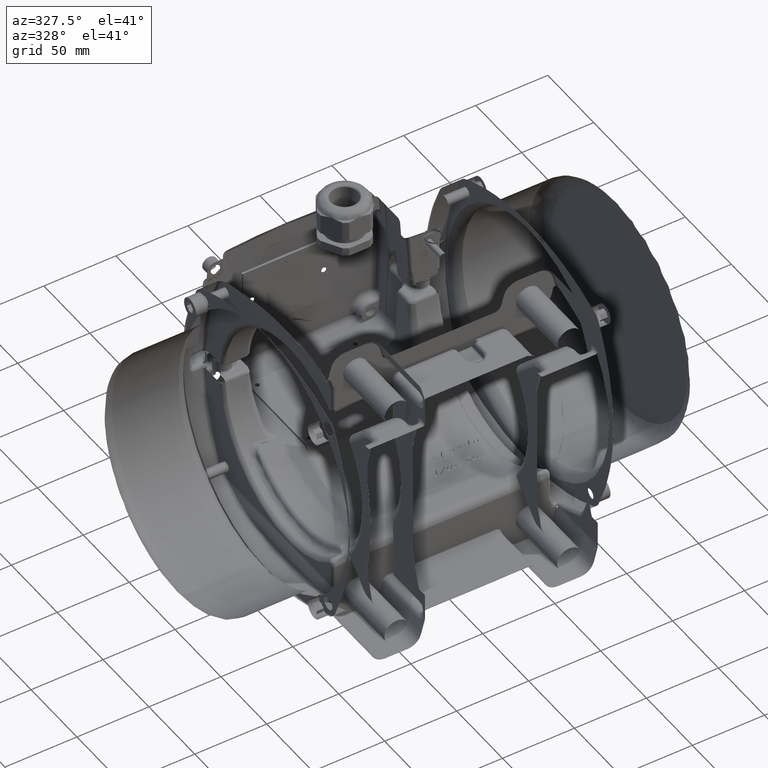
[diagram: clean part render]
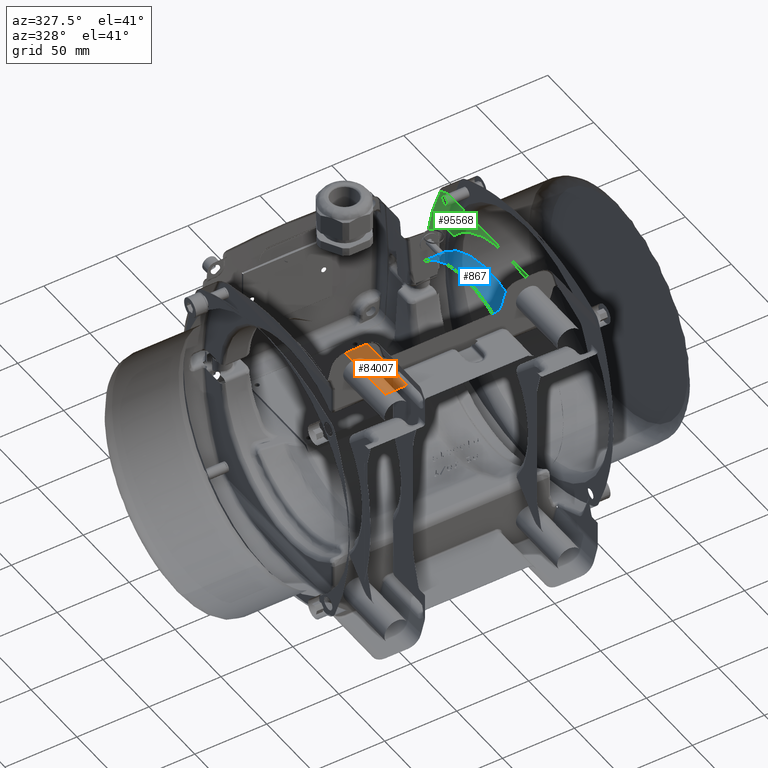
[diagram: same view with three faces highlighted in distinct colors, each labeled with its STEP entity id]
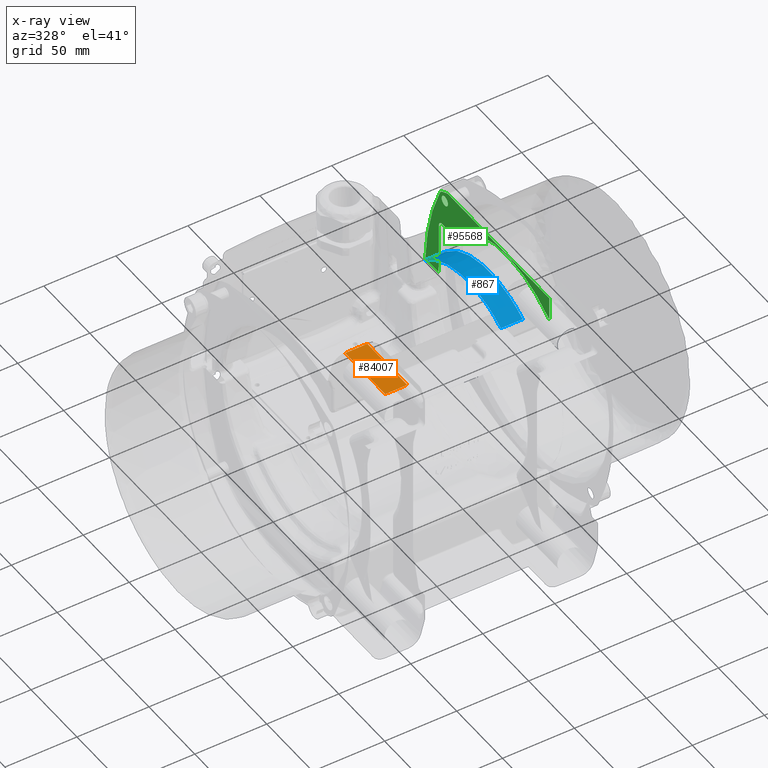
[diagram: x-ray of the same camera — body ghosted, the three highlighted faces saturated]
A machine part, auxiliary view with three faces highlighted in distinct colors.
The next image is the same camera in x-ray (body ghosted, the three faces saturated) — at least one of them is partly hidden behind the body in this view.
Their STEP definitions:

[orange] entity #84007 — the highlighted planar face has unit normal (-0, 0, -1).
#130 = VERTEX_POINT ( 'NONE', #28286 ) ;
#2100 = LINE ( 'NONE', #7037, #122182 ) ;
#4096 = CARTESIAN_POINT ( 'NONE',  ( -56.34717562445209900, -50.57102062944969800, 102.5000000000000000 ) ) ;
#5404 = ORIENTED_EDGE ( 'NONE', *, *, #90713, .T. ) ;
#7037 = CARTESIAN_POINT ( 'NONE',  ( -48.70955637178639800, -72.32102062944989000, 102.5000000000000000 ) ) ;
#8393 = CARTESIAN_POINT ( 'NONE',  ( -48.70955637178639800, -50.57102062944969800, 102.5000000000000000 ) ) ;
#9784 = EDGE_LOOP ( 'NONE', ( #60807, #49831, #71669, #5404 ) ) ;
#14916 = VERTEX_POINT ( 'NONE', #81315 ) ;
#27220 = EDGE_CURVE ( 'NONE', #70589, #130, #114839, .T. ) ;
#28286 = CARTESIAN_POINT ( 'NONE',  ( -63.98479487711789200, -50.57102062944960600, 102.5000000000000000 ) ) ;
#28890 = VECTOR ( 'NONE', #55240, 1000.000000000000000 ) ;
#38177 = DIRECTION ( 'NONE',  ( -3.906483347465955200E-032, 3.189992003522729900E-016, -1.000000000000000000 ) ) ;
#41738 = AXIS2_PLACEMENT_3D ( 'NONE', #100217, #38177, #67238 ) ;
#47641 = CARTESIAN_POINT ( 'NONE',  ( -63.98686791129638600, -94.07102062945000400, 102.5000000000000000 ) ) ;
#49831 = ORIENTED_EDGE ( 'NONE', *, *, #27220, .T. ) ;
#55240 = DIRECTION ( 'NONE',  ( 0.0000000000000000000, 1.000000000000000000, 3.189992003522729900E-016 ) ) ;
#60807 = ORIENTED_EDGE ( 'NONE', *, *, #117170, .T. ) ;
#64337 = CARTESIAN_POINT ( 'NONE',  ( -63.98479487711789200, -94.07309366362851200, 102.5000000000000000 ) ) ;
#67238 = DIRECTION ( 'NONE',  ( 0.0000000000000000000, 1.000000000000000000, 3.189992003522729900E-016 ) ) ;
#67500 = VERTEX_POINT ( 'NONE', #8393 ) ;
#70589 = VERTEX_POINT ( 'NONE', #130728 ) ;
#71669 = ORIENTED_EDGE ( 'NONE', *, *, #76787, .F. ) ;
#76787 = EDGE_CURVE ( 'NONE', #67500, #130, #98787, .T. ) ;
#78027 = PLANE ( 'NONE',  #41738 ) ;
#81315 = CARTESIAN_POINT ( 'NONE',  ( -48.70955637178639800, -94.07102062945000400, 102.5000000000000000 ) ) ;
#84007 = ADVANCED_FACE ( 'NONE', ( #126086 ), #78027, .T. ) ;
#90713 = EDGE_CURVE ( 'NONE', #67500, #14916, #2100, .T. ) ;
#98787 = LINE ( 'NONE', #4096, #110272 ) ;
#100217 = CARTESIAN_POINT ( 'NONE',  ( -63.98686791129638600, -94.07309366362851200, 102.5000000000000000 ) ) ;
#104534 = VECTOR ( 'NONE', #130513, 1000.000000000000000 ) ;
#110272 = VECTOR ( 'NONE', #118333, 1000.000000000000000 ) ;
#112729 = LINE ( 'NONE', #47641, #104534 ) ;
#114839 = LINE ( 'NONE', #64337, #28890 ) ;
#117170 = EDGE_CURVE ( 'NONE', #14916, #70589, #112729, .T. ) ;
#118333 = DIRECTION ( 'NONE',  ( -1.000000000000000000, 8.176637649666550800E-015, 5.451091766444370100E-015 ) ) ;
#122182 = VECTOR ( 'NONE', #123513, 1000.000000000000000 ) ;
#123513 = DIRECTION ( 'NONE',  ( 0.0000000000000000000, -1.000000000000000000, 0.0000000000000000000 ) ) ;
#126086 = FACE_OUTER_BOUND ( 'NONE', #9784, .T. ) ;
#130513 = DIRECTION ( 'NONE',  ( -1.000000000000000000, -1.246165064031110000E-047, 3.906483347465955200E-032 ) ) ;
#130728 = CARTESIAN_POINT ( 'NONE',  ( -63.98479487711789200, -94.07102062945000400, 102.5000000000000000 ) ) ;

[blue] entity #867 — the highlighted face is a freeform B-spline surface patch.
#767 = CARTESIAN_POINT ( 'NONE',  ( 57.55433245987499900, 39.13442289023454600, 55.24874687135879700 ) ) ;
#867 = ADVANCED_FACE ( 'NONE', ( #102639 ), #21177, .T. ) ;
#1202 = CARTESIAN_POINT ( 'NONE',  ( 67.67791767581158500, 7.013516903103109700, 67.84898644533369300 ) ) ;
#2150 = CARTESIAN_POINT ( 'NONE',  ( 67.67788719001414700, 29.19921828195945000, 61.25796130616419800 ) ) ;
#2991 = CARTESIAN_POINT ( 'NONE',  ( 62.61612506784329200, -34.05275636724540100, 59.59066894226089800 ) ) ;
#3439 = CARTESIAN_POINT ( 'NONE',  ( 57.55433245987499900, -16.09974065508929900, 66.65555311849318800 ) ) ;
#4410 = CARTESIAN_POINT ( 'NONE',  ( 53.66691907417442300, 46.71252753688620600, 48.38128764920720200 ) ) ;
#4735 = B_SPLINE_CURVE_WITH_KNOTS ( 'NONE', 3,
 ( #36442, #77641, #5555, #78078, #15990, #88502, #26450, #36872, #47340, #7834, #90778, #28751, #132923, #39177, #80812, #102572, #70892, #133828 ),
 .UNSPECIFIED., .F., .F.,
 ( 4, 2, 2, 1, 2, 2, 1, 2, 2, 4 ),
 ( 0.0000000000000000000, 0.1249999999999973100, 0.2499999999999946200, 0.3749999999999919000, 0.4374999999999834600, 0.4999999999999750200, 0.6249999999999802400, 0.6874999999999886800, 0.7499999999999970000, 1.000000000000000000 ),
 .UNSPECIFIED. ) ;
#5301 = CARTESIAN_POINT ( 'NONE',  ( 59.53491839174542800, 47.12263091362051900, 47.97308252074002200 ) ) ;
#5555 = CARTESIAN_POINT ( 'NONE',  ( 66.70237254294383400, 47.67212793170151700, 47.41419169200997200 ) ) ;
#6502 = CARTESIAN_POINT ( 'NONE',  ( 67.67788719001470100, -37.31085291087759300, 57.53846153844000400 ) ) ;
#7834 = CARTESIAN_POINT ( 'NONE',  ( 67.27615505549665900, 47.46462071391302100, 47.62658768975171600 ) ) ;
#9826 = CARTESIAN_POINT ( 'NONE',  ( 62.61612506784329200, 47.67562579118710200, 47.41059441455450200 ) ) ;
#10274 = CARTESIAN_POINT ( 'NONE',  ( 67.67791767581150000, 39.13442289023454600, 55.24874687135879700 ) ) ;
#10723 = CARTESIAN_POINT ( 'NONE',  ( 52.49253985190670600, 48.32029130255410400, 46.74776193733619300 ) ) ;
#10815 = CARTESIAN_POINT ( 'NONE',  ( 52.49257033770349800, 6.276944672491319800, 67.92223308036929600 ) ) ;
#11173 = VERTEX_POINT ( 'NONE', #52621 ) ;
#11710 = CARTESIAN_POINT ( 'NONE',  ( 52.49257033770349800, -34.10328290216858700, 59.55870606489526200 ) ) ;
#12063 = CARTESIAN_POINT ( 'NONE',  ( 62.61612506784329200, -16.09974065508929900, 66.65555311849318800 ) ) ;
#13019 = CARTESIAN_POINT ( 'NONE',  ( 67.67788719001404700, 18.38714119134290200, 65.49994822008230200 ) ) ;
#14366 = CARTESIAN_POINT ( 'NONE',  ( 67.67788719001404700, -16.09974065508929900, 66.65555311849323100 ) ) ;
#15990 = CARTESIAN_POINT ( 'NONE',  ( 66.89956368819429100, 47.64410347913611300, 47.44299145790912300 ) ) ;
#17051 = CARTESIAN_POINT ( 'NONE',  ( 67.67788719004759900, 46.35183522143289300, 48.73465537844609200 ) ) ;
#20295 = CARTESIAN_POINT ( 'NONE',  ( 57.55433245987499900, 48.32029130255410400, 46.74776193733619300 ) ) ;
#21177 = B_SPLINE_SURFACE_WITH_KNOTS ( 'NONE', 3, 3, ( 
 ( #113220, #73758, #20295, #10723 ),
 ( #41176, #124516, #82349, #124961 ),
 ( #31194, #103675, #51181, #104125 ),
 ( #124076, #9826, #93679, #31653 ),
 ( #42071, #52525, #62914, #72426 ),
 ( #10274, #123626, #767, #61578 ),
 ( #104578, #114995, #21641, #62027 ),
 ( #32079, #134462, #92787, #63359 ),
 ( #1202, #94567, #82792, #84126 ),
 ( #22084, #41625, #32513, #93236 ),
 ( #65166, #12063, #3439, #33410 ),
 ( #84572, #115896, #34304, #75539 ),
 ( #53415, #2991, #53840, #43863 ),
 ( #126303, #105912, #105464, #75095 ) ),
 .UNSPECIFIED., .F., .F., .F.,
 ( 4, 3, 1, 1, 1, 1, 1, 1, 1, 4 ),
 ( 4, 4 ),
 ( -0.9246299337579939600, 0.0000000000000000000, 11.55787417197492000, 23.11574834394985000, 34.67362251592474800, 46.23149668789970000, 57.78937085987460200, 69.34724503184949600, 80.90511920382439800, 92.46299337579940000 ),
 ( 0.0000000000000000000, 15.18537782390475000 ),
 .UNSPECIFIED. ) ;
#21641 = CARTESIAN_POINT ( 'NONE',  ( 57.55433245987499900, 29.19921828195945000, 61.25796130616419800 ) ) ;
#22072 = EDGE_CURVE ( 'NONE', #93179, #119955, #73367, .T. ) ;
#22084 = CARTESIAN_POINT ( 'NONE',  ( 67.67791767581158500, -4.593627799161609500, 68.23821888799210500 ) ) ;
#22615 = CARTESIAN_POINT ( 'NONE',  ( 52.49257033770349800, -27.33513376306713000, 63.06872584832341700 ) ) ;
#23040 = CARTESIAN_POINT ( 'NONE',  ( 67.67788719001414700, -4.593627799161609500, 68.23821888799210500 ) ) ;
#26450 = CARTESIAN_POINT ( 'NONE',  ( 67.11326647399604900, 47.56872844206932900, 47.52029045271839200 ) ) ;
#27349 = EDGE_CURVE ( 'NONE', #11173, #93179, #88205, .T. ) ;
#28751 = CARTESIAN_POINT ( 'NONE',  ( 67.41249329835034100, 47.34380567797379800, 47.74946271205453700 ) ) ;
#31194 = CARTESIAN_POINT ( 'NONE',  ( 67.67791767581150000, 47.89051429497610000, 47.18965025548170200 ) ) ;
#31653 = CARTESIAN_POINT ( 'NONE',  ( 52.49253985190670600, 47.67562579118710200, 47.41059441455450200 ) ) ;
#31747 = CARTESIAN_POINT ( 'NONE',  ( 52.49257033770349800, -5.147301417486420200, 68.19694806452470500 ) ) ;
#32043 = CARTESIAN_POINT ( 'NONE',  ( 66.56757403725239900, 47.66775028355639400, 47.41869050957770100 ) ) ;
#32079 = CARTESIAN_POINT ( 'NONE',  ( 67.67791767581150000, 18.38714119134290200, 65.49994822008230200 ) ) ;
#32513 = CARTESIAN_POINT ( 'NONE',  ( 57.55433245987499900, -4.593627799161609500, 68.23821888799210500 ) ) ;
#33410 = CARTESIAN_POINT ( 'NONE',  ( 52.49253985190679800, -16.09974065508929900, 66.65555311849318800 ) ) ;
#33467 = CARTESIAN_POINT ( 'NONE',  ( 67.67788719001404700, -27.16812199337222500, 63.14930684774776600 ) ) ;
#34304 = CARTESIAN_POINT ( 'NONE',  ( 57.55433245987499900, -27.16878377874330000, 63.14909720711300900 ) ) ;
#34816 = CARTESIAN_POINT ( 'NONE',  ( 67.67788719001404700, 44.03625606798716100, 50.98748760953033400 ) ) ;
#36175 = CARTESIAN_POINT ( 'NONE',  ( 56.01497638652242000, 46.87095288777639700, 48.22452461169599800 ) ) ;
#36442 = CARTESIAN_POINT ( 'NONE',  ( 66.56757403725239900, 47.66775028355639400, 47.41869050957770100 ) ) ;
#36872 = CARTESIAN_POINT ( 'NONE',  ( 67.19554089711165500, 47.51988726917881000, 47.57020153470576000 ) ) ;
#37040 = CARTESIAN_POINT ( 'NONE',  ( 67.66621828786048800, 46.68526936868418900, 48.40847537119038400 ) ) ;
#39177 = CARTESIAN_POINT ( 'NONE',  ( 67.50153298061115900, 47.22280491194548100, 47.87176455525057900 ) ) ;
#41176 = CARTESIAN_POINT ( 'NONE',  ( 67.67791767581150000, 48.10540279876509800, 46.96870609640900100 ) ) ;
#41625 = CARTESIAN_POINT ( 'NONE',  ( 62.61612506784329200, -4.593627799161609500, 68.23821888799210500 ) ) ;
#42071 = CARTESIAN_POINT ( 'NONE',  ( 67.67791767581150000, 44.98951949382459500, 50.17239640296359900 ) ) ;
#43863 = CARTESIAN_POINT ( 'NONE',  ( 52.49253985190679800, -34.05275636724545100, 59.59066894226089800 ) ) ;
#45491 = EDGE_CURVE ( 'NONE', #128214, #131410, #112948, .T. ) ;
#46059 = CARTESIAN_POINT ( 'NONE',  ( 52.49257033770359700, 46.63560224936649900, 48.45692983629889700 ) ) ;
#47340 = CARTESIAN_POINT ( 'NONE',  ( 67.24889195170382500, 47.48465258060495100, 47.60616441049302900 ) ) ;
#47501 = CARTESIAN_POINT ( 'NONE',  ( 67.67792342249002500, 46.52066468883128900, 48.57033357450014700 ) ) ;
#49801 = LINE ( 'NONE', #98300, #132428 ) ;
#51181 = CARTESIAN_POINT ( 'NONE',  ( 57.55433245987499900, 47.89051429497610000, 47.18965025548170200 ) ) ;
#52525 = CARTESIAN_POINT ( 'NONE',  ( 62.61612506784329200, 44.98951949382459500, 50.17239640296359900 ) ) ;
#52621 = CARTESIAN_POINT ( 'NONE',  ( 67.64277178613251400, 46.84572501848089800, 48.24917337038490200 ) ) ;
#53067 = CARTESIAN_POINT ( 'NONE',  ( 52.49257033770349800, 43.93431222169061800, 51.11643447996239300 ) ) ;
#53415 = CARTESIAN_POINT ( 'NONE',  ( 67.67791767581158500, -34.05275636724540100, 59.59066894226089800 ) ) ;
#53790 = EDGE_CURVE ( 'NONE', #131410, #119955, #49801, .T. ) ;
#53840 = CARTESIAN_POINT ( 'NONE',  ( 57.55433245987499900, -34.05275636724545100, 59.59066894226089800 ) ) ;
#54103 = CARTESIAN_POINT ( 'NONE',  ( 52.49257033770340500, -37.31085291085574300, 57.53846153840709800 ) ) ;
#54805 = ORIENTED_EDGE ( 'NONE', *, *, #27349, .T. ) ;
#58235 = VERTEX_POINT ( 'NONE', #32043 ) ;
#58846 = EDGE_LOOP ( 'NONE', ( #103855, #54805, #77144, #109792, #67150, #82174 ) ) ;
#61578 = CARTESIAN_POINT ( 'NONE',  ( 52.49253985190670600, 39.13442289023454600, 55.24874687135879700 ) ) ;
#62027 = CARTESIAN_POINT ( 'NONE',  ( 52.49253985190679800, 29.19921828195945000, 61.25796130616419800 ) ) ;
#62914 = CARTESIAN_POINT ( 'NONE',  ( 57.55433245987499900, 44.98951949382459500, 50.17239640296359900 ) ) ;
#63359 = CARTESIAN_POINT ( 'NONE',  ( 52.49253985190679800, 18.38714119134290200, 65.49994822008230200 ) ) ;
#64812 = CARTESIAN_POINT ( 'NONE',  ( 52.49257033770349800, 17.49563099644979800, 65.74738958909969700 ) ) ;
#65166 = CARTESIAN_POINT ( 'NONE',  ( 67.67791767581150000, -16.09974065508929900, 66.65555311849318800 ) ) ;
#66653 = DIRECTION ( 'NONE',  ( 1.000000000000000000, 1.341397804535467900E-015, -1.341397804535467900E-015 ) ) ;
#67150 = ORIENTED_EDGE ( 'NONE', *, *, #45491, .F. ) ;
#70892 = CARTESIAN_POINT ( 'NONE',  ( 67.62651026702617700, 46.95995595154808900, 48.13571485629917400 ) ) ;
#72426 = CARTESIAN_POINT ( 'NONE',  ( 52.49253985190670600, 44.98951949382459500, 50.17239640296359900 ) ) ;
#72969 = CARTESIAN_POINT ( 'NONE',  ( 52.49257033770349800, 38.07340396705939900, 55.99269507552013200 ) ) ;
#73367 = B_SPLINE_CURVE_WITH_KNOTS ( 'NONE', 3,
 ( #95984, #34816, #76470, #2150, #13019, #117303, #23040, #14366, #33467, #85537, #106414 ),
 .UNSPECIFIED., .F., .F.,
 ( 4, 1, 1, 1, 1, 1, 1, 1, 4 ),
 ( 0.0000000000000000000, 0.1069233206025451300, 0.2345089725031885600, 0.3620946244038317200, 0.4896802763044754100, 0.6172659282051185000, 0.7448515801057614700, 0.8724372320064046600, 1.000000000000000000 ),
 .UNSPECIFIED. ) ;
#73758 = CARTESIAN_POINT ( 'NONE',  ( 62.61612506784329200, 48.32029130255410400, 46.74776193733619300 ) ) ;
#75095 = CARTESIAN_POINT ( 'NONE',  ( 52.49253985190679800, -37.31260699989390200, 57.53735671156309900 ) ) ;
#75539 = CARTESIAN_POINT ( 'NONE',  ( 52.49253985190679800, -27.16878377874330000, 63.14909720711300900 ) ) ;
#76470 = CARTESIAN_POINT ( 'NONE',  ( 67.67788719001404700, 38.59809171173484500, 55.57314170636724500 ) ) ;
#76948 = CARTESIAN_POINT ( 'NONE',  ( 52.49257033770359700, 46.63560224936649900, 48.45692983629889700 ) ) ;
#77144 = ORIENTED_EDGE ( 'NONE', *, *, #22072, .T. ) ;
#77641 = CARTESIAN_POINT ( 'NONE',  ( 66.63553237046649300, 47.67305120293254800, 47.41324202369704500 ) ) ;
#78078 = CARTESIAN_POINT ( 'NONE',  ( 66.83381656642509900, 47.65783069686519700, 47.42888519522773500 ) ) ;
#79744 = EDGE_CURVE ( 'NONE', #58235, #11173, #4735, .T. ) ;
#80812 = CARTESIAN_POINT ( 'NONE',  ( 67.51813677261698400, 47.19607622388088000, 47.89871252279441200 ) ) ;
#82174 = ORIENTED_EDGE ( 'NONE', *, *, #93695, .F. ) ;
#82349 = CARTESIAN_POINT ( 'NONE',  ( 57.55433245987499900, 48.10540279876509800, 46.96870609640900100 ) ) ;
#82792 = CARTESIAN_POINT ( 'NONE',  ( 57.55433245987499900, 7.013516903103109700, 67.84898644533369300 ) ) ;
#84126 = CARTESIAN_POINT ( 'NONE',  ( 52.49253985190679800, 7.013516903103109700, 67.84898644533369300 ) ) ;
#84572 = CARTESIAN_POINT ( 'NONE',  ( 67.67791767581150000, -27.16878377874330000, 63.14909720711300900 ) ) ;
#85122 = CARTESIAN_POINT ( 'NONE',  ( 52.49257033770349800, 28.19540761693054900, 61.73232710760239400 ) ) ;
#85537 = CARTESIAN_POINT ( 'NONE',  ( 67.67788719001414700, -34.05152164613981100, 59.59130717616698500 ) ) ;
#88205 = B_SPLINE_CURVE_WITH_KNOTS ( 'NONE', 3,
 ( #130814, #37040, #47501, #17051 ),
 .UNSPECIFIED., .F., .F.,
 ( 4, 4 ),
 ( 0.0000000000000000000, 1.000000000000000000 ),
 .UNSPECIFIED. ) ;
#88502 = CARTESIAN_POINT ( 'NONE',  ( 67.02424852719806800, 47.60557797550416800, 47.48251747173379300 ) ) ;
#90778 = CARTESIAN_POINT ( 'NONE',  ( 67.34767538421226600, 47.40696581360453600, 47.68529313292492600 ) ) ;
#92787 = CARTESIAN_POINT ( 'NONE',  ( 57.55433245987499900, 18.38714119134290200, 65.49994822008230200 ) ) ;
#93179 = VERTEX_POINT ( 'NONE', #120589 ) ;
#93236 = CARTESIAN_POINT ( 'NONE',  ( 52.49253985190679800, -4.593627799161609500, 68.23821888799210500 ) ) ;
#93679 = CARTESIAN_POINT ( 'NONE',  ( 57.55433245987499900, 47.67562579118710200, 47.41059441455450200 ) ) ;
#93695 = EDGE_CURVE ( 'NONE', #58235, #128214, #105133, .T. ) ;
#93773 = CARTESIAN_POINT ( 'NONE',  ( 52.49257033770359700, 46.63560224936649900, 48.45692983629889700 ) ) ;
#94567 = CARTESIAN_POINT ( 'NONE',  ( 62.61612506784329200, 7.013516903103109700, 67.84898644533369300 ) ) ;
#95984 = CARTESIAN_POINT ( 'NONE',  ( 67.67788719004759900, 46.35183522143289300, 48.73465537844609200 ) ) ;
#98300 = CARTESIAN_POINT ( 'NONE',  ( 60.25189484283440300, -37.31085291089119200, 57.53846153846149700 ) ) ;
#102572 = CARTESIAN_POINT ( 'NONE',  ( 67.58973872608814300, 47.06818041020527200, 48.02744348753106600 ) ) ;
#102639 = FACE_OUTER_BOUND ( 'NONE', #58846, .T. ) ;
#103675 = CARTESIAN_POINT ( 'NONE',  ( 62.61612506784329200, 47.89051429497610000, 47.18965025548170200 ) ) ;
#103855 = ORIENTED_EDGE ( 'NONE', *, *, #79744, .T. ) ;
#104125 = CARTESIAN_POINT ( 'NONE',  ( 52.49253985190670600, 47.89051429497610000, 47.18965025548170200 ) ) ;
#104222 = CARTESIAN_POINT ( 'NONE',  ( 52.49257033770349800, -16.45819466071820300, 66.56304460999389500 ) ) ;
#104578 = CARTESIAN_POINT ( 'NONE',  ( 67.67791767581158500, 29.19921828195945000, 61.25796130616419800 ) ) ;
#104670 = CARTESIAN_POINT ( 'NONE',  ( 52.49257033770340500, -37.31085291085574300, 57.53846153840709800 ) ) ;
#105133 = B_SPLINE_CURVE_WITH_KNOTS ( 'NONE', 3,
 ( #107335, #117776, #107791, #5301, #36175, #4410, #76948 ),
 .UNSPECIFIED., .F., .F.,
 ( 4, 1, 1, 1, 4 ),
 ( 0.0000000000000000000, 0.2500355225278319000, 0.4999880712548088700, 0.7499984640031929200, 1.000000000000000000 ),
 .UNSPECIFIED. ) ;
#105464 = CARTESIAN_POINT ( 'NONE',  ( 57.55433245987499900, -37.31260699989390200, 57.53735671156309900 ) ) ;
#105912 = CARTESIAN_POINT ( 'NONE',  ( 62.61612506784329200, -37.31260699989385200, 57.53735671156309900 ) ) ;
#106414 = CARTESIAN_POINT ( 'NONE',  ( 67.67788719001470100, -37.31085291087759300, 57.53846153844000400 ) ) ;
#107335 = CARTESIAN_POINT ( 'NONE',  ( 66.56757403725239900, 47.66775028355639400, 47.41869050957770100 ) ) ;
#107791 = CARTESIAN_POINT ( 'NONE',  ( 63.05322174580808800, 47.38777486164352100, 47.70531816923341500 ) ) ;
#109792 = ORIENTED_EDGE ( 'NONE', *, *, #53790, .F. ) ;
#112948 = B_SPLINE_CURVE_WITH_KNOTS ( 'NONE', 3,
 ( #93773, #53067, #72969, #85122, #64812, #10815, #31747, #104222, #22615, #11710, #104670 ),
 .UNSPECIFIED., .F., .F.,
 ( 4, 1, 1, 1, 1, 1, 1, 1, 4 ),
 ( 0.0000000000000000000, 0.1249828935691865600, 0.2499886244230417300, 0.3749943552768974000, 0.5000000861307524200, 0.6250058169846086600, 0.7500115478384635800, 0.8750172786923197100, 1.000000000000000000 ),
 .UNSPECIFIED. ) ;
#113220 = CARTESIAN_POINT ( 'NONE',  ( 67.67791767581150000, 48.32029130255410400, 46.74776193733619300 ) ) ;
#114995 = CARTESIAN_POINT ( 'NONE',  ( 62.61612506784329200, 29.19921828195945000, 61.25796130616419800 ) ) ;
#115896 = CARTESIAN_POINT ( 'NONE',  ( 62.61612506784329200, -27.16878377874330000, 63.14909720711300900 ) ) ;
#117303 = CARTESIAN_POINT ( 'NONE',  ( 67.67788719001414700, 7.013516903103109700, 67.84898644533369300 ) ) ;
#117776 = CARTESIAN_POINT ( 'NONE',  ( 65.39617682465653600, 47.57296705764581900, 47.51605549136921500 ) ) ;
#119955 = VERTEX_POINT ( 'NONE', #6502 ) ;
#120589 = CARTESIAN_POINT ( 'NONE',  ( 67.67788719004759900, 46.35183522143289300, 48.73465537844609200 ) ) ;
#123626 = CARTESIAN_POINT ( 'NONE',  ( 62.61612506784320000, 39.13442289023454600, 55.24874687135879700 ) ) ;
#124076 = CARTESIAN_POINT ( 'NONE',  ( 67.67791767581150000, 47.67562579118710200, 47.41059441455450200 ) ) ;
#124516 = CARTESIAN_POINT ( 'NONE',  ( 62.61612506784329200, 48.10540279876509800, 46.96870609640900100 ) ) ;
#124961 = CARTESIAN_POINT ( 'NONE',  ( 52.49253985190670600, 48.10540279876509800, 46.96870609640900100 ) ) ;
#126303 = CARTESIAN_POINT ( 'NONE',  ( 67.67791767581158500, -37.31260699989385200, 57.53735671156309900 ) ) ;
#128214 = VERTEX_POINT ( 'NONE', #46059 ) ;
#130814 = CARTESIAN_POINT ( 'NONE',  ( 67.64277178613251400, 46.84572501848089800, 48.24917337038490200 ) ) ;
#131410 = VERTEX_POINT ( 'NONE', #54103 ) ;
#132428 = VECTOR ( 'NONE', #66653, 1000.000000000000000 ) ;
#132923 = CARTESIAN_POINT ( 'NONE',  ( 67.46725759062232400, 47.27232041740469300, 47.82176450060188000 ) ) ;
#133828 = CARTESIAN_POINT ( 'NONE',  ( 67.64277178613251400, 46.84572501848089800, 48.24917337038490200 ) ) ;
#134462 = CARTESIAN_POINT ( 'NONE',  ( 62.61612506784329200, 18.38714119134290200, 65.49994822008230200 ) ) ;

[green] entity #95568 — the highlighted planar face has unit normal (1, 0, 0).
#17 = CARTESIAN_POINT ( 'NONE',  ( 79.65282441890498400, 70.93915435961365300, 47.23703113984584700 ) ) ;
#576 = CARTESIAN_POINT ( 'NONE',  ( 79.65282437554789400, 65.13249548036309000, 64.32942753672590200 ) ) ;
#1096 = CARTESIAN_POINT ( 'NONE',  ( 79.65282437554785100, -36.98704858074682300, 65.88471230963067200 ) ) ;
#1583 = DIRECTION ( 'NONE',  ( 1.000000000000000000, 3.275570791092070000E-016, 0.0000000000000000000 ) ) ;
#1884 = CARTESIAN_POINT ( 'NONE',  ( 79.65282437554779400, 63.25840027387703700, 66.20351655203971600 ) ) ;
#1928 = VERTEX_POINT ( 'NONE', #15007 ) ;
#1982 = CARTESIAN_POINT ( 'NONE',  ( 79.65282437554780900, 32.45319126563297400, 67.13342163426280300 ) ) ;
#2637 = VERTEX_POINT ( 'NONE', #88250 ) ;
#3856 = CARTESIAN_POINT ( 'NONE',  ( 79.65282437554783700, 68.90594733741890800, 69.97731290360589200 ) ) ;
#4413 = B_SPLINE_CURVE_WITH_KNOTS ( 'NONE', 3,
 ( #105265, #83505, #576, #126109, #1884, #83945, #11418, #64071, #83057, #64516, #125668 ),
 .UNSPECIFIED., .F., .F.,
 ( 4, 1, 1, 1, 1, 1, 1, 1, 4 ),
 ( 0.01069054821312328600, 0.01202796278886692300, 0.01336537736461055800, 0.01470279194035418700, 0.01604020651609782500, 0.01737762109184146100, 0.01871503566758509600, 0.02005245024332872500, 0.02138986481907236400 ),
 .UNSPECIFIED. ) ;
#4476 = VERTEX_POINT ( 'NONE', #103104 ) ;
#4513 = ORIENTED_EDGE ( 'NONE', *, *, #37144, .T. ) ;
#4551 = CARTESIAN_POINT ( 'NONE',  ( 79.65282437554779400, 87.75626808933429900, 75.61916848035500000 ) ) ;
#4916 = ORIENTED_EDGE ( 'NONE', *, *, #114881, .T. ) ;
#4983 = DIRECTION ( 'NONE',  ( 3.275570791092070000E-016, -1.000000000000000000, -0.0000000000000000000 ) ) ;
#7125 = ORIENTED_EDGE ( 'NONE', *, *, #9838, .T. ) ;
#8037 = EDGE_CURVE ( 'NONE', #48155, #114931, #91063, .T. ) ;
#8188 = CARTESIAN_POINT ( 'NONE',  ( 79.65282437645443300, 71.86472381129722500, 46.49151538937353200 ) ) ;
#8639 = CARTESIAN_POINT ( 'NONE',  ( 79.65282439323019000, 70.31663303873389700, 47.53090090805063300 ) ) ;
#9098 = CARTESIAN_POINT ( 'NONE',  ( 79.65282444966582900, 69.84441591813265400, 47.67614901403398900 ) ) ;
#9230 = ORIENTED_EDGE ( 'NONE', *, *, #32585, .T. ) ;
#9541 = CARTESIAN_POINT ( 'NONE',  ( 79.65282440356061500, 70.25803666498993000, 47.55197346040764500 ) ) ;
#9838 = EDGE_CURVE ( 'NONE', #4476, #70566, #45642, .T. ) ;
#9989 = CARTESIAN_POINT ( 'NONE',  ( 79.65282440168798000, 70.26744950573917900, 47.54861825097151500 ) ) ;
#10427 = CARTESIAN_POINT ( 'NONE',  ( 79.65282437555170200, 71.82348970181936900, 46.53504176831179300 ) ) ;
#11418 = CARTESIAN_POINT ( 'NONE',  ( 79.65282437554789400, 63.25831448191940600, 68.85387865459090100 ) ) ;
#11509 = CARTESIAN_POINT ( 'NONE',  ( 79.65282437554783700, 16.66672696511243500, 72.91188854967124700 ) ) ;
#11551 = CARTESIAN_POINT ( 'NONE',  ( 79.65282437554779400, 73.18663091589485200, 10.64431826595380100 ) ) ;
#11956 = CARTESIAN_POINT ( 'NONE',  ( 79.65282437554783700, -16.74870542356255900, 73.38223449953805800 ) ) ;
#12576 = B_SPLINE_CURVE_WITH_KNOTS ( 'NONE', 3,
 ( #111204, #49164, #109400, #78978 ),
 .UNSPECIFIED., .F., .F.,
 ( 4, 4 ),
 ( 0.0000000000000000000, 1.000000000000000000 ),
 .UNSPECIFIED. ) ;
#12855 = CARTESIAN_POINT ( 'NONE',  ( 79.65282437554782300, -4.827539443585798100, 74.94452056247968100 ) ) ;
#14872 = AXIS2_PLACEMENT_3D ( 'NONE', #56943, #1583, #106311 ) ;
#15007 = CARTESIAN_POINT ( 'NONE',  ( 79.65282437554782300, 66.45767697386531800, 64.15369760331529400 ) ) ;
#18204 = CARTESIAN_POINT ( 'NONE',  ( 79.65282438971351600, 71.99494421433520600, 46.34458814097737200 ) ) ;
#18657 = CARTESIAN_POINT ( 'NONE',  ( 79.65282437554779400, 72.92897937054999600, 43.76022759015940300 ) ) ;
#18680 = EDGE_CURVE ( 'NONE', #1928, #117461, #4413, .T. ) ;
#19089 = CARTESIAN_POINT ( 'NONE',  ( 79.65282441915688600, 71.03061935717700200, 47.18300417660292100 ) ) ;
#19159 = CARTESIAN_POINT ( 'NONE',  ( 79.65282437554783700, -47.52414129640158100, 60.38849102423007100 ) ) ;
#19372 = ORIENTED_EDGE ( 'NONE', *, *, #28599, .T. ) ;
#19544 = CARTESIAN_POINT ( 'NONE',  ( 79.65282438460224100, 71.42091350428962900, 46.90596608964077100 ) ) ;
#20015 = EDGE_CURVE ( 'NONE', #57146, #44732, #107150, .T. ) ;
#20456 = CARTESIAN_POINT ( 'NONE',  ( 79.65282437564475500, 71.83558867634296500, 46.52227242203650800 ) ) ;
#20852 = B_SPLINE_CURVE_WITH_KNOTS ( 'NONE', 3,
 ( #73707, #11551, #65098, #116278 ),
 .UNSPECIFIED., .F., .F.,
 ( 4, 4 ),
 ( 0.0000000000000000000, 1.000000000000000000 ),
 .UNSPECIFIED. ) ;
#21539 = CARTESIAN_POINT ( 'NONE',  ( 79.65282437554782300, 50.15645913227684400, 54.79160737920360400 ) ) ;
#22422 = CARTESIAN_POINT ( 'NONE',  ( 79.65282437554785100, 11.95099942580457500, 73.89986649675594800 ) ) ;
#22869 = CARTESIAN_POINT ( 'NONE',  ( 79.65282437554782300, -45.12524112897435900, 60.74531565566811500 ) ) ;
#24220 = CARTESIAN_POINT ( 'NONE',  ( 79.65282437554779400, 56.73913620707629900, 47.78060031566330000 ) ) ;
#26013 = EDGE_CURVE ( 'NONE', #117461, #1928, #110666, .T. ) ;
#26527 = CARTESIAN_POINT ( 'NONE',  ( 79.65282437554779400, 87.75419500443619800, 7.499999997634600600 ) ) ;
#27755 = CARTESIAN_POINT ( 'NONE',  ( 79.65282440841633600, 72.89226988024917400, 44.31125737049534800 ) ) ;
#28202 = CARTESIAN_POINT ( 'NONE',  ( 79.65282437554780900, 81.64148632191577800, 44.88312822926682300 ) ) ;
#28599 = EDGE_CURVE ( 'NONE', #114931, #39229, #109887, .T. ) ;
#28658 = CARTESIAN_POINT ( 'NONE',  ( 79.65282437999798000, 71.93128285589647000, 46.41933041232316300 ) ) ;
#29009 = CARTESIAN_POINT ( 'NONE',  ( 79.65282437554779400, 72.92897937054979700, 12.20655561573365900 ) ) ;
#29095 = CARTESIAN_POINT ( 'NONE',  ( 79.65282437554778000, 87.50136067668179900, 12.92058097522934000 ) ) ;
#29174 = CARTESIAN_POINT ( 'NONE',  ( 79.65282437554789400, -47.57102062945040200, 61.00000000000000000 ) ) ;
#29556 = CARTESIAN_POINT ( 'NONE',  ( 79.65282438100639700, 71.47149310621308900, 46.86481981965700100 ) ) ;
#29832 = DIRECTION ( 'NONE',  ( -3.275570791092070000E-016, 1.000000000000000000, 0.0000000000000000000 ) ) ;
#30464 = CARTESIAN_POINT ( 'NONE',  ( 79.65282440945530600, 71.16826280034018700, 47.09457375164740300 ) ) ;
#30896 = CARTESIAN_POINT ( 'NONE',  ( 79.65282441676767200, 70.88945074947963600, 47.26529106719331000 ) ) ;
#31984 = CARTESIAN_POINT ( 'NONE',  ( 79.65282437554785100, -30.49250740960545200, 69.03024816958749500 ) ) ;
#32585 = EDGE_CURVE ( 'NONE', #67003, #57146, #61571, .T. ) ;
#33301 = CARTESIAN_POINT ( 'NONE',  ( 79.65282437554785100, 2.393895924044137300, 74.95840085449573600 ) ) ;
#33749 = CARTESIAN_POINT ( 'NONE',  ( 79.65282437554783700, -43.15801503644645700, 62.12415731886024900 ) ) ;
#34285 = FACE_BOUND ( 'NONE', #55820, .T. ) ;
#37047 = EDGE_CURVE ( 'NONE', #131981, #4476, #20852, .T. ) ;
#37144 = EDGE_CURVE ( 'NONE', #39229, #67003, #74884, .T. ) ;
#38194 = CARTESIAN_POINT ( 'NONE',  ( 79.65282438617366300, 72.67843585396556700, 45.15988444689725200 ) ) ;
#38504 = VECTOR ( 'NONE', #72502, 1000.000000000000000 ) ;
#39080 = CARTESIAN_POINT ( 'NONE',  ( 79.65282444819877100, 72.86900456682272400, 44.45618960739280100 ) ) ;
#39229 = VERTEX_POINT ( 'NONE', #67113 ) ;
#39524 = CARTESIAN_POINT ( 'NONE',  ( 79.65282437554780900, 85.37960887318422500, 29.04923187141232800 ) ) ;
#40287 = ORIENTED_EDGE ( 'NONE', *, *, #50219, .T. ) ;
#40879 = CARTESIAN_POINT ( 'NONE',  ( 79.65282441870611800, 70.17816876062748600, 47.57962400204611700 ) ) ;
#41783 = CARTESIAN_POINT ( 'NONE',  ( 79.65282437561806700, 71.83410049389017600, 46.52384104656616900 ) ) ;
#43090 = CARTESIAN_POINT ( 'NONE',  ( 79.65282437554779400, 62.83405778908869600, 47.78060031571030200 ) ) ;
#43761 = CARTESIAN_POINT ( 'NONE',  ( 79.65282437554783700, 23.58600226747686400, 70.87180567347110100 ) ) ;
#44217 = CARTESIAN_POINT ( 'NONE',  ( 79.65282437554780900, 25.84530214773850400, 70.04467305498008000 ) ) ;
#44732 = VERTEX_POINT ( 'NONE', #125826 ) ;
#45040 = ORIENTED_EDGE ( 'NONE', *, *, #129605, .T. ) ;
#45196 = CARTESIAN_POINT ( 'NONE',  ( 79.65282437554783700, 69.65703946581109600, 68.85387865459090100 ) ) ;
#45642 = LINE ( 'NONE', #49815, #50586 ) ;
#46080 = CARTESIAN_POINT ( 'NONE',  ( 79.65282437554783700, 69.65695367385339400, 66.20351655203971600 ) ) ;
#48155 = VERTEX_POINT ( 'NONE', #70043 ) ;
#48654 = CARTESIAN_POINT ( 'NONE',  ( 79.65282437750806800, 72.65834800633409400, 45.21342674925119100 ) ) ;
#48727 = LINE ( 'NONE', #125534, #115124 ) ;
#49111 = CARTESIAN_POINT ( 'NONE',  ( 79.65282437554780900, 72.92894257667615000, 43.88989082288600900 ) ) ;
#49164 = CARTESIAN_POINT ( 'NONE',  ( 79.65282437554779400, 67.12378236882064200, 73.85988608650187400 ) ) ;
#49815 = CARTESIAN_POINT ( 'NONE',  ( 79.65282437554779400, 87.75626808933429900, 7.499999999305729600 ) ) ;
#49978 = CARTESIAN_POINT ( 'NONE',  ( 79.65282437554779400, 74.21418845867282200, 65.24954642859204100 ) ) ;
#50219 = EDGE_CURVE ( 'NONE', #70566, #121196, #87876, .T. ) ;
#50429 = CARTESIAN_POINT ( 'NONE',  ( 79.65282441450976600, 70.85248354776175000, 47.28590585670849600 ) ) ;
#50586 = VECTOR ( 'NONE', #29832, 1000.000000000000000 ) ;
#51785 = CARTESIAN_POINT ( 'NONE',  ( 79.65282437556742000, 71.82946504794863100, 46.52873624680086800 ) ) ;
#52228 = CARTESIAN_POINT ( 'NONE',  ( 79.65282440549717100, 70.24849304797882600, 47.55535445552538200 ) ) ;
#53821 = FACE_OUTER_BOUND ( 'NONE', #76177, .T. ) ;
#54181 = CARTESIAN_POINT ( 'NONE',  ( 79.65282437554780900, 44.67456046607455300, 59.48238363572477300 ) ) ;
#54620 = CARTESIAN_POINT ( 'NONE',  ( 79.65282437554780900, 38.74423928743876600, 63.60457870349320300 ) ) ;
#55820 = EDGE_LOOP ( 'NONE', ( #65210, #127111 ) ) ;
#56943 = CARTESIAN_POINT ( 'NONE',  ( 79.65282437554779400, 87.75626808933429900, 7.497926965821479300 ) ) ;
#57146 = VERTEX_POINT ( 'NONE', #24220 ) ;
#57760 = CARTESIAN_POINT ( 'NONE',  ( 79.65282437554780900, 71.16948390078761100, 71.28574831460261400 ) ) ;
#58599 = CARTESIAN_POINT ( 'NONE',  ( 79.65282438626154300, 72.67863199039925300, 45.15935883308683400 ) ) ;
#58970 = CARTESIAN_POINT ( 'NONE',  ( 79.65282437554789400, -47.02418295931379800, 59.27315473099979900 ) ) ;
#59499 = CARTESIAN_POINT ( 'NONE',  ( 79.65282438392949900, 72.67345391121314400, 45.17328448362376700 ) ) ;
#59950 = CARTESIAN_POINT ( 'NONE',  ( 79.65282445885290500, 72.84080654307329900, 44.61652145124707400 ) ) ;
#60840 = CARTESIAN_POINT ( 'NONE',  ( 79.65282437554779400, 68.92897937082679500, 47.78060031571030200 ) ) ;
#61284 = CARTESIAN_POINT ( 'NONE',  ( 79.65282438302814700, 71.44204296584355500, 46.88888028992388300 ) ) ;
#61571 = B_SPLINE_CURVE_WITH_KNOTS ( 'NONE', 3,
 ( #95366, #22869, #33749, #94010, #1096, #83596, #31984, #63722, #74099, #106257, #11956, #105359, #64164, #12855, #95813, #33301, #73208, #74990, #22422, #11509, #115795, #43761, #44217, #116686, #1982, #105814, #54620, #94921, #54181, #126643, #127086, #21539, #104476, #104910, #63260, #114889 ),
 .UNSPECIFIED., .F., .F.,
 ( 4, 2, 2, 2, 2, 2, 2, 2, 2, 2, 2, 2, 2, 2, 2, 2, 2, 4 ),
 ( 0.0000000000000000000, 0.06250000000000001400, 0.1250000000000000300, 0.1875000000000000600, 0.2500000000000000600, 0.3125000000000000600, 0.3750000000000000000, 0.4375000000000000000, 0.4999999999999999400, 0.5624999999999998900, 0.6249999999999998900, 0.6874999999999998900, 0.7499999999999998900, 0.8125000000000000000, 0.8749999999999998900, 0.9062500000000000000, 0.9375000000000000000, 1.000000000000000000 ),
 .UNSPECIFIED. ) ;
#62184 = CARTESIAN_POINT ( 'NONE',  ( 79.65282437547138300, 71.77951749903344600, 46.58121043442183400 ) ) ;
#62624 = CARTESIAN_POINT ( 'NONE',  ( 79.65282439516346400, 71.30146078245326200, 46.99927982481700900 ) ) ;
#63260 = CARTESIAN_POINT ( 'NONE',  ( 79.65282437554783700, 55.20814675133415500, 49.63290161785024400 ) ) ;
#63722 = CARTESIAN_POINT ( 'NONE',  ( 79.65282437554783700, -26.00366316080356200, 70.77542526635205900 ) ) ;
#64071 = CARTESIAN_POINT ( 'NONE',  ( 79.65282437554789400, 64.00940661031164300, 69.97731290360593400 ) ) ;
#64164 = CARTESIAN_POINT ( 'NONE',  ( 79.65282437554783700, -9.621646440516189000, 74.54974095795968500 ) ) ;
#64516 = CARTESIAN_POINT ( 'NONE',  ( 79.65282437554789400, 66.01872374932899800, 70.90369760331535100 ) ) ;
#65098 = CARTESIAN_POINT ( 'NONE',  ( 79.65282437554779400, 73.39465017691706800, 9.075466393811174400 ) ) ;
#65210 = ORIENTED_EDGE ( 'NONE', *, *, #26013, .T. ) ;
#65225 = ORIENTED_EDGE ( 'NONE', *, *, #20015, .T. ) ;
#65597 = CARTESIAN_POINT ( 'NONE',  ( 79.65282437554783700, 67.78285846736749000, 64.32942753672588800 ) ) ;
#65969 = CARTESIAN_POINT ( 'NONE',  ( 79.65282437554778000, 71.55578634500170700, 70.74251623173661600 ) ) ;
#66470 = CARTESIAN_POINT ( 'NONE',  ( 79.65282437554782300, 66.89940413836602300, 64.15369760331526500 ) ) ;
#66854 = CARTESIAN_POINT ( 'NONE',  ( 79.65282437554779400, 70.21481494445608000, 72.24059178954074400 ) ) ;
#67003 = VERTEX_POINT ( 'NONE', #58970 ) ;
#67113 = CARTESIAN_POINT ( 'NONE',  ( 79.65282437554789400, -47.57102062945040200, 61.00000000000000000 ) ) ;
#67368 = CARTESIAN_POINT ( 'NONE',  ( 79.65282437554783700, 69.92051717588169900, 67.52869760331530800 ) ) ;
#69446 = CARTESIAN_POINT ( 'NONE',  ( 79.65282437554780900, 76.32573887694692900, 60.25814995830029400 ) ) ;
#69456 = CARTESIAN_POINT ( 'NONE',  ( 79.65282441053602700, 72.19501793002149300, 46.08577864772775000 ) ) ;
#70043 = CARTESIAN_POINT ( 'NONE',  ( 79.65282437554779400, 63.19079616068799500, 75.61916848035340900 ) ) ;
#70365 = CARTESIAN_POINT ( 'NONE',  ( 79.65282433141098300, 72.54762575706476500, 45.49476471644538100 ) ) ;
#70566 = VERTEX_POINT ( 'NONE', #26527 ) ;
#70795 = CARTESIAN_POINT ( 'NONE',  ( 79.65282437554779400, 71.85030342059758400, 70.13422727585378900 ) ) ;
#71245 = CARTESIAN_POINT ( 'NONE',  ( 79.65282441005220400, 70.22508778534835000, 47.56354208904133400 ) ) ;
#72502 = DIRECTION ( 'NONE',  ( -0.0000000000000000000, -0.0000000000000000000, -1.000000000000000000 ) ) ;
#72583 = CARTESIAN_POINT ( 'NONE',  ( 79.65282444514304000, 70.00499118830009600, 47.63535427475144200 ) ) ;
#73208 = CARTESIAN_POINT ( 'NONE',  ( 79.65282437554783700, 4.794618113489221400, 74.80893766867788500 ) ) ;
#73707 = CARTESIAN_POINT ( 'NONE',  ( 79.65282437554779400, 72.92897937054979700, 12.20655561573365900 ) ) ;
#74099 = CARTESIAN_POINT ( 'NONE',  ( 79.65282437554785100, -23.72241465661575800, 71.53818240261775000 ) ) ;
#74314 = DIRECTION ( 'NONE',  ( -0.0000000000000000000, -0.0000000000000000000, -1.000000000000000000 ) ) ;
#74884 = B_SPLINE_CURVE_WITH_KNOTS ( 'NONE', 3,
 ( #29174, #102097, #19159, #132899, #112550, #80352 ),
 .UNSPECIFIED., .F., .F.,
 ( 4, 2, 4 ),
 ( 0.0000000000000000000, 0.5000000000000000000, 1.000000000000000000 ),
 .UNSPECIFIED. ) ;
#74990 = CARTESIAN_POINT ( 'NONE',  ( 79.65282437554785100, 9.575984932238800000, 74.27940050022748200 ) ) ;
#75949 = CARTESIAN_POINT ( 'NONE',  ( 79.65282437554783700, 66.89663019840149600, 70.90369760331530800 ) ) ;
#76177 = EDGE_LOOP ( 'NONE', ( #4916, #45040, #106113, #19372, #4513, #9230, #65225, #90842, #132209, #83519, #7125, #40287 ) ) ;
#78533 = CARTESIAN_POINT ( 'NONE',  ( 79.65282437554779400, 69.67183401905011000, 72.62664312219935400 ) ) ;
#78931 = CARTESIAN_POINT ( 'NONE',  ( 79.65282445331716600, 72.86619965118134700, 44.47226297817776000 ) ) ;
#78978 = CARTESIAN_POINT ( 'NONE',  ( 79.65282437554779400, 63.19079616068799500, 75.61916848035340900 ) ) ;
#79128 = CARTESIAN_POINT ( 'NONE',  ( 79.65282437554779400, 71.85030342059758400, 70.13422727585378900 ) ) ;
#80285 = CARTESIAN_POINT ( 'NONE',  ( 79.65282437347318000, 72.91949211009303200, 44.08479910950931200 ) ) ;
#80352 = CARTESIAN_POINT ( 'NONE',  ( 79.65282437554789400, -47.02418295931379800, 59.27315473099979900 ) ) ;
#81106 = VECTOR ( 'NONE', #115562, 1000.000000000000000 ) ;
#81617 = CARTESIAN_POINT ( 'NONE',  ( 79.65282437566367000, 71.83647022769851300, 46.52134447671570400 ) ) ;
#82951 = CARTESIAN_POINT ( 'NONE',  ( 79.65282437159224600, 71.68423225471723000, 46.68353763306699000 ) ) ;
#83057 = CARTESIAN_POINT ( 'NONE',  ( 79.65282437554779400, 65.13120860099810700, 70.72796766990468600 ) ) ;
#83505 = CARTESIAN_POINT ( 'NONE',  ( 79.65282437554789400, 66.01594980936455700, 64.15369760331529400 ) ) ;
#83519 = ORIENTED_EDGE ( 'NONE', *, *, #37047, .T. ) ;
#83596 = CARTESIAN_POINT ( 'NONE',  ( 79.65282437554785100, -32.69119149635457000, 68.05132529381893400 ) ) ;
#83945 = CARTESIAN_POINT ( 'NONE',  ( 79.65282437554789400, 62.99483677184880300, 67.52869760331530800 ) ) ;
#85112 = EDGE_CURVE ( 'NONE', #119008, #44732, #117736, .T. ) ;
#87876 = B_SPLINE_CURVE_WITH_KNOTS ( 'NONE', 3,
 ( #91133, #29095, #101573, #39524, #112022, #28202, #131493, #69446, #49978, #70795 ),
 .UNSPECIFIED., .F., .F.,
 ( 4, 2, 2, 2, 4 ),
 ( 0.0000000000000000000, 0.2500000000000000000, 0.5000000000000000000, 0.7500000000000000000, 1.000000000000000000 ),
 .UNSPECIFIED. ) ;
#88250 = CARTESIAN_POINT ( 'NONE',  ( 79.65282437554779400, 69.06320664640399800, 72.92132405004738900 ) ) ;
#89352 = CARTESIAN_POINT ( 'NONE',  ( 79.65282445817884100, 72.85773262927485000, 44.51880139744266500 ) ) ;
#90109 = CARTESIAN_POINT ( 'NONE',  ( 79.65282437554789400, -47.57102062945040200, 7.497926965821479300 ) ) ;
#90249 = CARTESIAN_POINT ( 'NONE',  ( 79.65282440910093000, 72.11825499624650600, 46.19192948589368100 ) ) ;
#90842 = ORIENTED_EDGE ( 'NONE', *, *, #85112, .F. ) ;
#91063 = LINE ( 'NONE', #4551, #96041 ) ;
#91133 = CARTESIAN_POINT ( 'NONE',  ( 79.65282437554779400, 87.75419500443619800, 7.499999997634600600 ) ) ;
#91146 = CARTESIAN_POINT ( 'NONE',  ( 79.65282437573567600, 71.83940908933334400, 46.51825418225988800 ) ) ;
#92952 = CARTESIAN_POINT ( 'NONE',  ( 79.65282441745895900, 70.90366909682340700, 47.25724901989095600 ) ) ;
#94010 = CARTESIAN_POINT ( 'NONE',  ( 79.65282437554783700, -39.08103946714776800, 64.69896290194132900 ) ) ;
#94921 = CARTESIAN_POINT ( 'NONE',  ( 79.65282437554782300, 42.74420175699543000, 60.91827125386078000 ) ) ;
#95366 = CARTESIAN_POINT ( 'NONE',  ( 79.65282437554789400, -47.02418295931379800, 59.27315473099979900 ) ) ;
#95568 = ADVANCED_FACE ( 'NONE', ( #53821, #34285 ), #119003, .T. ) ;
#95813 = CARTESIAN_POINT ( 'NONE',  ( 79.65282437554782300, -2.423292686491731500, 75.02623651246723600 ) ) ;
#96041 = VECTOR ( 'NONE', #4983, 1000.000000000000000 ) ;
#98055 = CARTESIAN_POINT ( 'NONE',  ( 79.65282437554779400, 69.06320664640399800, 72.92132405004738900 ) ) ;
#98112 = CARTESIAN_POINT ( 'NONE',  ( 79.65282437554783700, 68.90629050524960100, 65.08008230302458200 ) ) ;
#99797 = CARTESIAN_POINT ( 'NONE',  ( 79.65282439997504600, 72.70771138743765500, 45.07849737135213500 ) ) ;
#100236 = CARTESIAN_POINT ( 'NONE',  ( 79.65282445390892000, 72.86564331146260500, 44.47533574122066800 ) ) ;
#100677 = CARTESIAN_POINT ( 'NONE',  ( 79.65282445310130300, 72.86631409252389300, 44.47156826768267700 ) ) ;
#101573 = CARTESIAN_POINT ( 'NONE',  ( 79.65282437554780900, 86.97570382363423400, 18.31570528699133500 ) ) ;
#102097 = CARTESIAN_POINT ( 'NONE',  ( 79.65282437554785100, -47.57090732461130500, 60.69072479647086700 ) ) ;
#102475 = CARTESIAN_POINT ( 'NONE',  ( 79.65282440046652800, 70.65715990898607400, 47.39052895233057000 ) ) ;
#102936 = CARTESIAN_POINT ( 'NONE',  ( 79.65282441315436300, 70.83264556497108800, 47.29671787692816300 ) ) ;
#103104 = CARTESIAN_POINT ( 'NONE',  ( 79.65282437554779400, 73.55303715361630200, 7.499999999305729600 ) ) ;
#103379 = CARTESIAN_POINT ( 'NONE',  ( 79.65282438775952300, 70.52321468831812000, 47.44924847279475000 ) ) ;
#103830 = CARTESIAN_POINT ( 'NONE',  ( 79.65282443063236400, 69.45544538292095600, 47.75465839528831700 ) ) ;
#104476 = CARTESIAN_POINT ( 'NONE',  ( 79.65282437554780900, 51.03006072487151800, 53.96140003696785900 ) ) ;
#104910 = CARTESIAN_POINT ( 'NONE',  ( 79.65282437554780900, 53.58950419881217900, 51.40963921094721900 ) ) ;
#105265 = CARTESIAN_POINT ( 'NONE',  ( 79.65282437554782300, 66.45767697386531800, 64.15369760331529400 ) ) ;
#105359 = CARTESIAN_POINT ( 'NONE',  ( 79.65282437554782300, -12.00659164517003700, 74.23722511370191100 ) ) ;
#105814 = CARTESIAN_POINT ( 'NONE',  ( 79.65282437554782300, 36.68637689728964800, 64.84738063731735700 ) ) ;
#106113 = ORIENTED_EDGE ( 'NONE', *, *, #8037, .T. ) ;
#106257 = CARTESIAN_POINT ( 'NONE',  ( 79.65282437554785100, -19.09215719352163600, 72.84237418174723200 ) ) ;
#106311 = DIRECTION ( 'NONE',  ( -3.275570791092070000E-016, 1.000000000000000000, 0.0000000000000000000 ) ) ;
#107150 = LINE ( 'NONE', #43090, #81106 ) ;
#107221 = CARTESIAN_POINT ( 'NONE',  ( 79.65282437554782300, 66.45767697386531800, 64.15369760331529400 ) ) ;
#109400 = CARTESIAN_POINT ( 'NONE',  ( 79.65282437554780900, 65.16631220691529300, 74.75916756327104900 ) ) ;
#109887 = LINE ( 'NONE', #90109, #38504 ) ;
#110666 = B_SPLINE_CURVE_WITH_KNOTS ( 'NONE', 3,
 ( #118102, #75949, #118538, #3856, #45196, #67368, #46080, #98112, #65597, #66470, #107221 ),
 .UNSPECIFIED., .F., .F.,
 ( 4, 1, 1, 1, 1, 1, 1, 1, 4 ),
 ( 0.0000000000000000000, 0.001336318526640440400, 0.002672637053280830500, 0.004008955579921220200, 0.005345274106561661100, 0.006681592633202062100, 0.008017911159842461300, 0.009354229686482884800, 0.01069054821312328600 ),
 .UNSPECIFIED. ) ;
#110699 = CARTESIAN_POINT ( 'NONE',  ( 79.65282438552834800, 72.67701450238365600, 45.16371377002261100 ) ) ;
#111149 = CARTESIAN_POINT ( 'NONE',  ( 79.65282439420245500, 72.69567495621713200, 45.11290274251438600 ) ) ;
#111204 = CARTESIAN_POINT ( 'NONE',  ( 79.65282437554779400, 69.06320664640399800, 72.92132405004738900 ) ) ;
#112022 = CARTESIAN_POINT ( 'NONE',  ( 79.65282437554779400, 84.31258198811603700, 34.36343869171862800 ) ) ;
#112473 = CARTESIAN_POINT ( 'NONE',  ( 79.65282438740514700, 71.38570089207148300, 46.93410205857856700 ) ) ;
#112550 = CARTESIAN_POINT ( 'NONE',  ( 79.65282437554785100, -47.20232921666847400, 59.52642699672038200 ) ) ;
#112929 = CARTESIAN_POINT ( 'NONE',  ( 79.65282437980967200, 71.49382612542731900, 46.84612863926725600 ) ) ;
#113377 = CARTESIAN_POINT ( 'NONE',  ( 79.65282437554780900, 69.19134560256256300, 47.78112777190462200 ) ) ;
#113819 = CARTESIAN_POINT ( 'NONE',  ( 79.65282438387987400, 71.43048166136652800, 46.89824696437693800 ) ) ;
#114268 = CARTESIAN_POINT ( 'NONE',  ( 79.65282441638116500, 70.88272784095156000, 47.26907558091767900 ) ) ;
#114881 = EDGE_CURVE ( 'NONE', #121196, #2637, #123292, .T. ) ;
#114889 = CARTESIAN_POINT ( 'NONE',  ( 79.65282437554779400, 56.73913620707629900, 47.78060031566330000 ) ) ;
#114931 = VERTEX_POINT ( 'NONE', #119805 ) ;
#115124 = VECTOR ( 'NONE', #74314, 1000.000000000000000 ) ;
#115562 = DIRECTION ( 'NONE',  ( 0.0000000000000000000, 1.000000000000000000, 0.0000000000000000000 ) ) ;
#115795 = CARTESIAN_POINT ( 'NONE',  ( 79.65282437554782300, 18.99471024787152700, 72.30596941839286300 ) ) ;
#116278 = CARTESIAN_POINT ( 'NONE',  ( 79.65282437554779400, 73.55303715361630200, 7.499999999305729600 ) ) ;
#116686 = CARTESIAN_POINT ( 'NONE',  ( 79.65282437554780900, 30.28451916588410600, 68.17312699174885900 ) ) ;
#117420 = CARTESIAN_POINT ( 'NONE',  ( 79.65282437554779400, 72.92897937054999600, 43.76022759015940300 ) ) ;
#117461 = VERTEX_POINT ( 'NONE', #118175 ) ;
#117736 = B_SPLINE_CURVE_WITH_KNOTS ( 'NONE', 3,
 ( #18657, #49111, #80285, #27755, #132834, #39080, #78931, #100677, #100236, #122012, #89352, #59950, #132391, #121551, #99797, #111149, #121114, #58599, #38194, #110699, #59499, #48654, #70365, #131504, #69456, #90249, #18204, #28658, #8188, #91146, #81617, #20456, #41783, #51785, #10427, #62184, #82951, #112929, #29556, #61284, #133286, #113819, #19544, #112473, #62624, #30464, #19089, #17, #92952, #30896, #114268, #50429, #102936, #102475, #103379, #134175, #8639, #123785, #9989, #9541, #52228, #71245, #40879, #72583, #9098, #103830, #113377, #60840 ),
 .UNSPECIFIED., .F., .F.,
 ( 4, 1, 1, 1, 2, 2, 2, 2, 2, 1, 2, 2, 1, 1, 1, 2, 2, 1, 2, 2, 1, 1, 2, 2, 2, 2, 1, 1, 1, 1, 1, 1, 2, 2, 2, 2, 2, 2, 2, 1, 1, 2, 4 ),
 ( 0.0000000000000000000, 0.06249999999967037500, 0.09374999999950556200, 0.1093749999994210300, 0.1132812499994001900, 0.1171874999993793300, 0.1249999999993659800, 0.1874999999992324200, 0.2187499999991649500, 0.2265624999991472900, 0.2285156249991421600, 0.2294921874991396000, 0.2304687499991370200, 0.2343749999991298600, 0.2499999999991028300, 0.3749999999989012100, 0.4374999999988004000, 0.4687499999987500000, 0.4843749999987260200, 0.4863281249987199700, 0.4882812499987138600, 0.4921874999987249600, 0.4999999999987472200, 0.5624999999989365200, 0.5703124999989590500, 0.5722656249989638300, 0.5742187499989686000, 0.5781249999989751500, 0.5937499999990062400, 0.6249999999990739600, 0.6562499999991415800, 0.6718749999991791000, 0.6757812499991877600, 0.6796874999991963100, 0.6874999999992134100, 0.7499999999993294300, 0.7812499999993880500, 0.7851562499993960400, 0.7890624999994039200, 0.7968749999994259000, 0.8124999999994688700, 0.8749999999996459500, 1.000000000000000000 ),
 .UNSPECIFIED. ) ;
#118102 = CARTESIAN_POINT ( 'NONE',  ( 79.65282437554779400, 66.45767697386520500, 70.90369760331530800 ) ) ;
#118175 = CARTESIAN_POINT ( 'NONE',  ( 79.65282437554779400, 66.45767697386520500, 70.90369760331530800 ) ) ;
#118538 = CARTESIAN_POINT ( 'NONE',  ( 79.65282437554783700, 67.78414534673240200, 70.72796766990468600 ) ) ;
#119003 = PLANE ( 'NONE',  #14872 ) ;
#119008 = VERTEX_POINT ( 'NONE', #117420 ) ;
#119805 = CARTESIAN_POINT ( 'NONE',  ( 79.65282437554789400, -47.57102062945040200, 75.61916848035379200 ) ) ;
#121114 = CARTESIAN_POINT ( 'NONE',  ( 79.65282438810712100, 72.68261344804496100, 45.14858008821272500 ) ) ;
#121196 = VERTEX_POINT ( 'NONE', #134031 ) ;
#121551 = CARTESIAN_POINT ( 'NONE',  ( 79.65282442173014500, 72.75287554020364700, 44.94508591629897900 ) ) ;
#122012 = CARTESIAN_POINT ( 'NONE',  ( 79.65282445439139300, 72.86501872457823500, 44.47881369531223300 ) ) ;
#123292 = B_SPLINE_CURVE_WITH_KNOTS ( 'NONE', 3,
 ( #79128, #65969, #57760, #66854, #78533, #98055 ),
 .UNSPECIFIED., .F., .F.,
 ( 4, 2, 4 ),
 ( 0.0000000000000000000, 0.5000000000000000000, 1.000000000000000000 ),
 .UNSPECIFIED. ) ;
#123785 = CARTESIAN_POINT ( 'NONE',  ( 79.65282440079917600, 70.27226772465743900, 47.54689172643990200 ) ) ;
#125534 = CARTESIAN_POINT ( 'NONE',  ( 79.65282437554779400, 72.92897937054999600, 7.497926965821479300 ) ) ;
#125668 = CARTESIAN_POINT ( 'NONE',  ( 79.65282437554779400, 66.45767697386520500, 70.90369760331530800 ) ) ;
#125826 = CARTESIAN_POINT ( 'NONE',  ( 79.65282437554779400, 68.92897937082679500, 47.78060031571030200 ) ) ;
#126109 = CARTESIAN_POINT ( 'NONE',  ( 79.65282437554789400, 64.00906344248100800, 65.08008230302458200 ) ) ;
#126643 = CARTESIAN_POINT ( 'NONE',  ( 79.65282437554782300, 47.46264267643780200, 57.19193403812148100 ) ) ;
#127086 = CARTESIAN_POINT ( 'NONE',  ( 79.65282437554779400, 48.37315026232069900, 56.40647542665745800 ) ) ;
#127111 = ORIENTED_EDGE ( 'NONE', *, *, #18680, .T. ) ;
#129605 = EDGE_CURVE ( 'NONE', #2637, #48155, #12576, .T. ) ;
#131493 = CARTESIAN_POINT ( 'NONE',  ( 79.65282437554779400, 80.04417047389245000, 50.06192577165667500 ) ) ;
#131504 = CARTESIAN_POINT ( 'NONE',  ( 79.65282438213296200, 72.41009800827954700, 45.75667094353366300 ) ) ;
#131981 = VERTEX_POINT ( 'NONE', #29009 ) ;
#132209 = ORIENTED_EDGE ( 'NONE', *, *, #133752, .T. ) ;
#132391 = CARTESIAN_POINT ( 'NONE',  ( 79.65282443449449100, 72.77954232307972400, 44.85189556414821500 ) ) ;
#132834 = CARTESIAN_POINT ( 'NONE',  ( 79.65282443578316000, 72.87589772471376600, 44.41598919644616900 ) ) ;
#132899 = CARTESIAN_POINT ( 'NONE',  ( 79.65282437554783700, -47.33795013554581000, 59.80014870850168100 ) ) ;
#133286 = CARTESIAN_POINT ( 'NONE',  ( 79.65282438340803100, 71.43685255764253800, 46.89309075228762000 ) ) ;
#133752 = EDGE_CURVE ( 'NONE', #119008, #131981, #48727, .T. ) ;
#134031 = CARTESIAN_POINT ( 'NONE',  ( 79.65282437554779400, 71.85030342059758400, 70.13422727585378900 ) ) ;
#134175 = CARTESIAN_POINT ( 'NONE',  ( 79.65282438959745500, 70.36320383077782000, 47.51349198761473500 ) ) ;